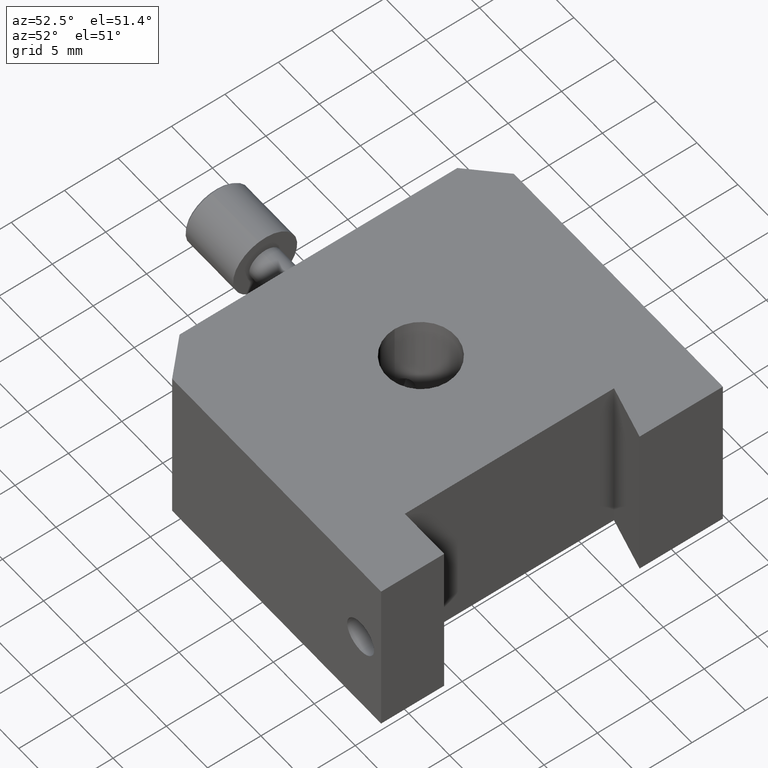
[diagram: clean part render]
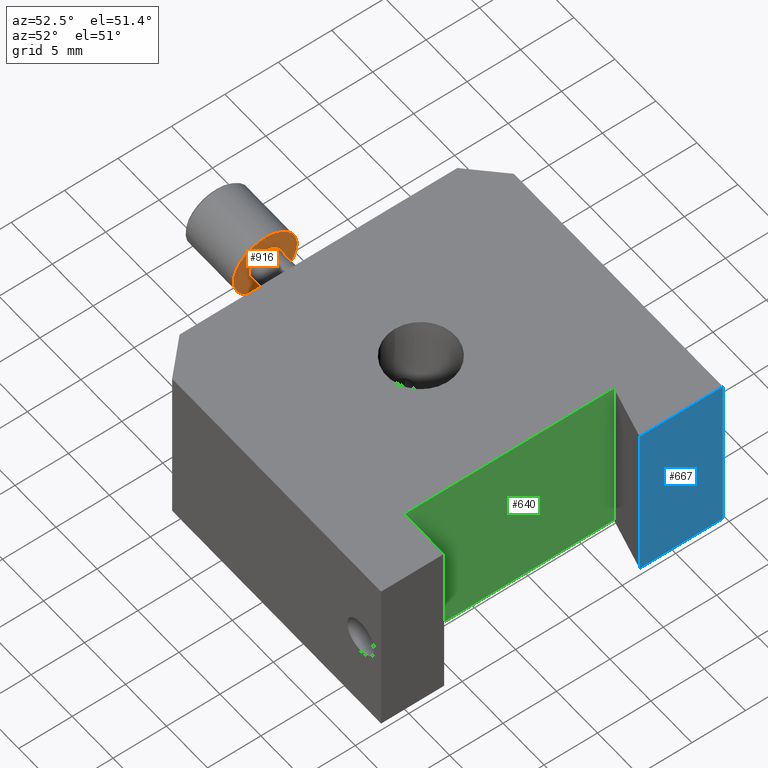
[diagram: same view with three faces highlighted in distinct colors, each labeled with its STEP entity id]
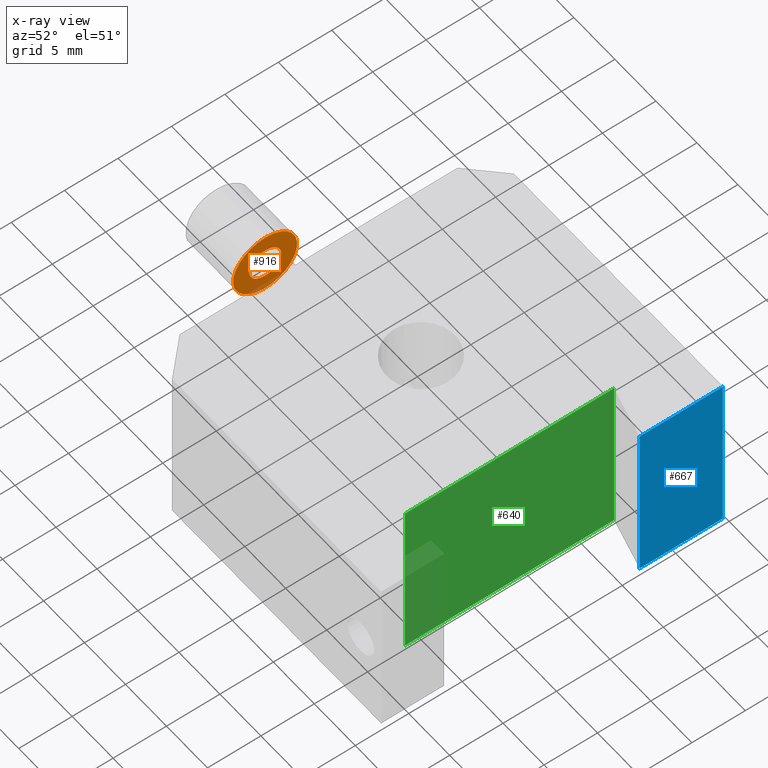
[diagram: x-ray of the same camera — body ghosted, the three highlighted faces saturated]
A machine part, auxiliary view with three faces highlighted in distinct colors.
The next image is the same camera in x-ray (body ghosted, the three faces saturated) — at least one of them is partly hidden behind the body in this view.
Their STEP definitions:

[orange] entity #916 — the highlighted planar face has unit normal (-1, 0, 0).
#25 = EDGE_LOOP ( 'NONE', ( #890, #202 ) ) ;
#50 = EDGE_CURVE ( 'NONE', #810, #79, #201, .T. ) ;
#79 = VERTEX_POINT ( 'NONE', #724 ) ;
#117 = CARTESIAN_POINT ( 'NONE',  ( -24.97105950749486100, -1.893927990922026100, 33.47088026013697300 ) ) ;
#119 = DIRECTION ( 'NONE',  ( 0.0000000000000000000, -0.1960853106169125300, 0.9805868400913143600 ) ) ;
#140 = DIRECTION ( 'NONE',  ( -1.000000000000000000, 0.0000000000000000000, 0.0000000000000000000 ) ) ;
#170 = AXIS2_PLACEMENT_3D ( 'NONE', #898, #739, #729 ) ;
#171 = CIRCLE ( 'NONE', #170, 3.000000000000000400 ) ;
#201 = CIRCLE ( 'NONE', #508, 3.000000000000000400 ) ;
#202 = ORIENTED_EDGE ( 'NONE', *, *, #293, .F. ) ;
#206 = AXIS2_PLACEMENT_3D ( 'NONE', #600, #140, #670 ) ;
#210 = AXIS2_PLACEMENT_3D ( 'NONE', #303, #827, #384 ) ;
#216 = DIRECTION ( 'NONE',  ( 0.0000000000000000000, -0.1960853106169124800, 0.9805868400913143600 ) ) ;
#228 = CIRCLE ( 'NONE', #206, 1.499999999999996900 ) ;
#273 = CARTESIAN_POINT ( 'NONE',  ( -24.97105950749486100, -1.011544093145919400, 29.05823947972606500 ) ) ;
#293 = EDGE_CURVE ( 'NONE', #79, #810, #171, .T. ) ;
#303 = CARTESIAN_POINT ( 'NONE',  ( -24.97105950749486100, -1.599800024996657100, 32.00000000000000700 ) ) ;
#346 = EDGE_CURVE ( 'NONE', #883, #860, #228, .T. ) ;
#349 = EDGE_CURVE ( 'NONE', #860, #883, #812, .T. ) ;
#384 = DIRECTION ( 'NONE',  ( 0.0000000000000000000, -0.1960853106169128900, 0.9805868400913142500 ) ) ;
#508 = AXIS2_PLACEMENT_3D ( 'NONE', #773, #549, #119 ) ;
#521 = ORIENTED_EDGE ( 'NONE', *, *, #346, .T. ) ;
#527 = PLANE ( 'NONE',  #708 ) ;
#549 = DIRECTION ( 'NONE',  ( -1.000000000000000000, 0.0000000000000000000, 0.0000000000000000000 ) ) ;
#598 = CARTESIAN_POINT ( 'NONE',  ( -24.97105950749486100, -1.599800024996657100, 32.00000000000000700 ) ) ;
#600 = CARTESIAN_POINT ( 'NONE',  ( -24.97105950749486100, -1.599800024996657100, 32.00000000000000700 ) ) ;
#663 = CARTESIAN_POINT ( 'NONE',  ( -24.97105950749486100, -1.305672059071288200, 30.52911973986303500 ) ) ;
#665 = EDGE_LOOP ( 'NONE', ( #521, #931 ) ) ;
#670 = DIRECTION ( 'NONE',  ( 0.0000000000000000000, -0.1960853106169128900, 0.9805868400913142500 ) ) ;
#673 = DIRECTION ( 'NONE',  ( -1.000000000000000000, 0.0000000000000000000, 0.0000000000000000000 ) ) ;
#708 = AXIS2_PLACEMENT_3D ( 'NONE', #598, #673, #216 ) ;
#724 = CARTESIAN_POINT ( 'NONE',  ( -24.97105950749486100, -2.188055956847394100, 34.94176052027395200 ) ) ;
#729 = DIRECTION ( 'NONE',  ( 0.0000000000000000000, -0.1960853106169125300, 0.9805868400913143600 ) ) ;
#739 = DIRECTION ( 'NONE',  ( -1.000000000000000000, 0.0000000000000000000, 0.0000000000000000000 ) ) ;
#773 = CARTESIAN_POINT ( 'NONE',  ( -24.97105950749486100, -1.599800024996657100, 32.00000000000000700 ) ) ;
#810 = VERTEX_POINT ( 'NONE', #273 ) ;
#812 = CIRCLE ( 'NONE', #210, 1.499999999999996900 ) ;
#827 = DIRECTION ( 'NONE',  ( -1.000000000000000000, 0.0000000000000000000, 0.0000000000000000000 ) ) ;
#841 = FACE_BOUND ( 'NONE', #665, .T. ) ;
#860 = VERTEX_POINT ( 'NONE', #117 ) ;
#883 = VERTEX_POINT ( 'NONE', #663 ) ;
#890 = ORIENTED_EDGE ( 'NONE', *, *, #50, .F. ) ;
#898 = CARTESIAN_POINT ( 'NONE',  ( -24.97105950749486100, -1.599800024996657100, 32.00000000000000700 ) ) ;
#916 = ADVANCED_FACE ( 'NONE', ( #841, #951 ), #527, .F. ) ;
#931 = ORIENTED_EDGE ( 'NONE', *, *, #349, .T. ) ;
#951 = FACE_OUTER_BOUND ( 'NONE', #25, .T. ) ;

[blue] entity #667 — the highlighted planar face has unit normal (-1, -0, 0).
#21 = EDGE_CURVE ( 'NONE', #941, #405, #37, .T. ) ;
#23 = AXIS2_PLACEMENT_3D ( 'NONE', #864, #338, #780 ) ;
#37 = LINE ( 'NONE', #166, #231 ) ;
#100 = VERTEX_POINT ( 'NONE', #505 ) ;
#109 = FACE_OUTER_BOUND ( 'NONE', #284, .T. ) ;
#166 = CARTESIAN_POINT ( 'NONE',  ( 10.02652793400824600, 14.40019997500335200, 24.15000000000000200 ) ) ;
#174 = VECTOR ( 'NONE', #611, 1000.000000000000000 ) ;
#207 = DIRECTION ( 'NONE',  ( -1.084202172485504400E-016, 1.000000000000000000, -0.0000000000000000000 ) ) ;
#229 = PLANE ( 'NONE',  #23 ) ;
#231 = VECTOR ( 'NONE', #246, 1000.000000000000000 ) ;
#246 = DIRECTION ( 'NONE',  ( -1.084202172485504400E-016, 1.000000000000000000, -0.0000000000000000000 ) ) ;
#250 = ORIENTED_EDGE ( 'NONE', *, *, #881, .F. ) ;
#264 = ORIENTED_EDGE ( 'NONE', *, *, #21, .T. ) ;
#278 = VERTEX_POINT ( 'NONE', #563 ) ;
#284 = EDGE_LOOP ( 'NONE', ( #250, #336, #264, #487 ) ) ;
#285 = EDGE_CURVE ( 'NONE', #100, #405, #1006, .T. ) ;
#306 = CARTESIAN_POINT ( 'NONE',  ( 10.02652793400825000, 6.600199975003348200, 24.15000000000000200 ) ) ;
#336 = ORIENTED_EDGE ( 'NONE', *, *, #465, .F. ) ;
#338 = DIRECTION ( 'NONE',  ( -1.000000000000000000, -1.084202172485504400E-016, 0.0000000000000000000 ) ) ;
#367 = VECTOR ( 'NONE', #944, 1000.000000000000000 ) ;
#395 = VECTOR ( 'NONE', #207, 1000.000000000000000 ) ;
#405 = VERTEX_POINT ( 'NONE', #918 ) ;
#454 = CARTESIAN_POINT ( 'NONE',  ( 10.02652793400824600, 14.40019997500335200, 39.84999999999999400 ) ) ;
#458 = CARTESIAN_POINT ( 'NONE',  ( 10.02652793400825000, 6.600199975003348200, 24.15000000000000200 ) ) ;
#465 = EDGE_CURVE ( 'NONE', #941, #278, #764, .T. ) ;
#487 = ORIENTED_EDGE ( 'NONE', *, *, #285, .F. ) ;
#505 = CARTESIAN_POINT ( 'NONE',  ( 10.02652793400824600, 14.40019997500335200, 39.84999999999999400 ) ) ;
#563 = CARTESIAN_POINT ( 'NONE',  ( 10.02652793400825000, 6.600199975003348200, 39.84999999999999400 ) ) ;
#611 = DIRECTION ( 'NONE',  ( -0.0000000000000000000, -0.0000000000000000000, 1.000000000000000000 ) ) ;
#633 = CARTESIAN_POINT ( 'NONE',  ( 10.02652793400824600, 14.40019997500335200, 39.84999999999999400 ) ) ;
#667 = ADVANCED_FACE ( 'NONE', ( #109 ), #229, .F. ) ;
#764 = LINE ( 'NONE', #458, #174 ) ;
#780 = DIRECTION ( 'NONE',  ( 1.084202172485504400E-016, -1.000000000000000000, 0.0000000000000000000 ) ) ;
#787 = LINE ( 'NONE', #454, #395 ) ;
#864 = CARTESIAN_POINT ( 'NONE',  ( 10.02652793400824600, 14.40019997500335200, 39.84999999999999400 ) ) ;
#881 = EDGE_CURVE ( 'NONE', #278, #100, #787, .T. ) ;
#918 = CARTESIAN_POINT ( 'NONE',  ( 10.02652793400824600, 14.40019997500335200, 24.15000000000000200 ) ) ;
#941 = VERTEX_POINT ( 'NONE', #306 ) ;
#944 = DIRECTION ( 'NONE',  ( -0.0000000000000000000, -0.0000000000000000000, -1.000000000000000000 ) ) ;
#1006 = LINE ( 'NONE', #633, #367 ) ;

[green] entity #640 — the highlighted planar face has unit normal (-1, -0, 0).
#65 = AXIS2_PLACEMENT_3D ( 'NONE', #460, #924, #391 ) ;
#92 = ORIENTED_EDGE ( 'NONE', *, *, #416, .F. ) ;
#102 = VECTOR ( 'NONE', #358, 1000.000000000000000 ) ;
#137 = FACE_OUTER_BOUND ( 'NONE', #684, .T. ) ;
#153 = CARTESIAN_POINT ( 'NONE',  ( 5.226527934008251100, 7.886356098672719900, 39.84999999999999400 ) ) ;
#159 = CARTESIAN_POINT ( 'NONE',  ( 5.226527934008251100, 7.886356098672719900, 24.15000000000000200 ) ) ;
#212 = ORIENTED_EDGE ( 'NONE', *, *, #532, .T. ) ;
#262 = VERTEX_POINT ( 'NONE', #414 ) ;
#300 = LINE ( 'NONE', #484, #502 ) ;
#325 = LINE ( 'NONE', #452, #102 ) ;
#358 = DIRECTION ( 'NONE',  ( 8.856885776992446100E-017, -1.000000000000000000, 0.0000000000000000000 ) ) ;
#391 = DIRECTION ( 'NONE',  ( 8.856885776992444800E-017, -1.000000000000000000, 0.0000000000000000000 ) ) ;
#398 = LINE ( 'NONE', #159, #772 ) ;
#411 = LINE ( 'NONE', #986, #586 ) ;
#414 = CARTESIAN_POINT ( 'NONE',  ( 5.226527934008251100, 7.886356098672719900, 24.15000000000000200 ) ) ;
#416 = EDGE_CURVE ( 'NONE', #262, #637, #411, .T. ) ;
#452 = CARTESIAN_POINT ( 'NONE',  ( 5.226527934008251100, 7.886356098672719900, 39.84999999999999400 ) ) ;
#460 = CARTESIAN_POINT ( 'NONE',  ( 5.226527934008251100, 7.886356098672719900, 24.15000000000000200 ) ) ;
#484 = CARTESIAN_POINT ( 'NONE',  ( 5.226527934008252900, -11.69980002499665000, 24.15000000000000200 ) ) ;
#489 = VERTEX_POINT ( 'NONE', #153 ) ;
#502 = VECTOR ( 'NONE', #793, 1000.000000000000000 ) ;
#532 = EDGE_CURVE ( 'NONE', #262, #489, #398, .T. ) ;
#533 = DIRECTION ( 'NONE',  ( 8.856885776992446100E-017, -1.000000000000000000, 0.0000000000000000000 ) ) ;
#551 = DIRECTION ( 'NONE',  ( -0.0000000000000000000, -0.0000000000000000000, 1.000000000000000000 ) ) ;
#586 = VECTOR ( 'NONE', #533, 1000.000000000000000 ) ;
#612 = CARTESIAN_POINT ( 'NONE',  ( 5.226527934008252900, -11.69980002499665000, 39.84999999999999400 ) ) ;
#625 = ORIENTED_EDGE ( 'NONE', *, *, #727, .F. ) ;
#628 = VERTEX_POINT ( 'NONE', #612 ) ;
#637 = VERTEX_POINT ( 'NONE', #762 ) ;
#640 = ADVANCED_FACE ( 'NONE', ( #137 ), #991, .F. ) ;
#684 = EDGE_LOOP ( 'NONE', ( #990, #625, #92, #212 ) ) ;
#727 = EDGE_CURVE ( 'NONE', #637, #628, #300, .T. ) ;
#762 = CARTESIAN_POINT ( 'NONE',  ( 5.226527934008252900, -11.69980002499665000, 24.15000000000000200 ) ) ;
#772 = VECTOR ( 'NONE', #551, 1000.000000000000000 ) ;
#793 = DIRECTION ( 'NONE',  ( -0.0000000000000000000, -0.0000000000000000000, 1.000000000000000000 ) ) ;
#924 = DIRECTION ( 'NONE',  ( -1.000000000000000000, -8.856885776992444800E-017, 0.0000000000000000000 ) ) ;
#942 = EDGE_CURVE ( 'NONE', #489, #628, #325, .T. ) ;
#986 = CARTESIAN_POINT ( 'NONE',  ( 5.226527934008251100, 7.886356098672719900, 24.15000000000000200 ) ) ;
#990 = ORIENTED_EDGE ( 'NONE', *, *, #942, .T. ) ;
#991 = PLANE ( 'NONE',  #65 ) ;